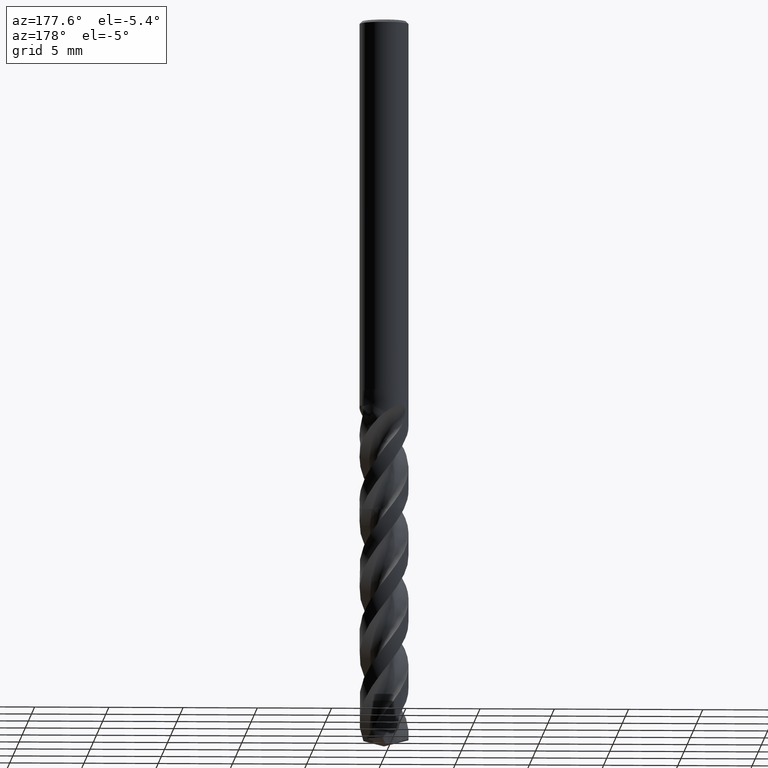
[diagram: clean part render]
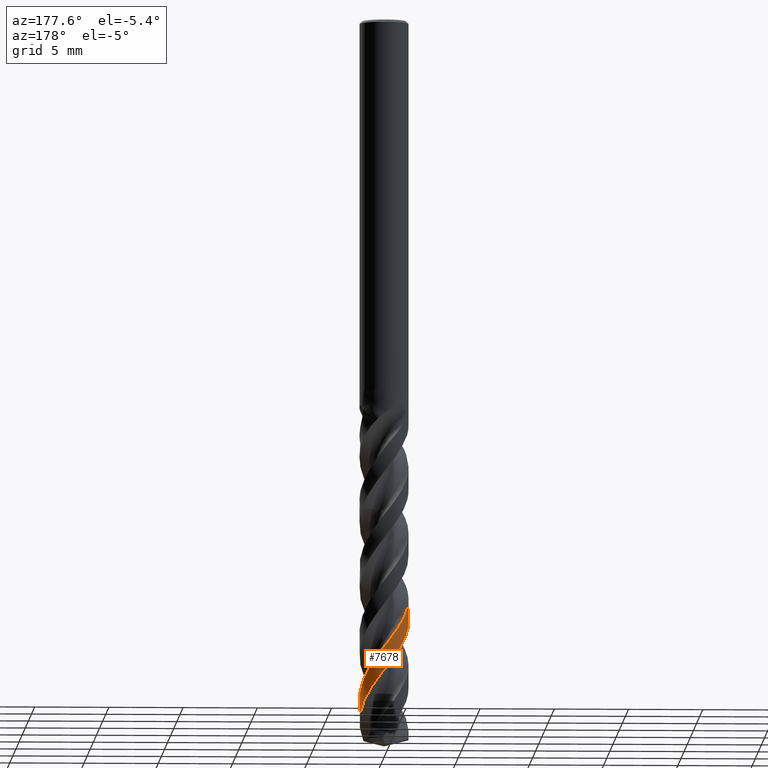
[diagram: same view with one face highlighted and labeled with its STEP entity id]
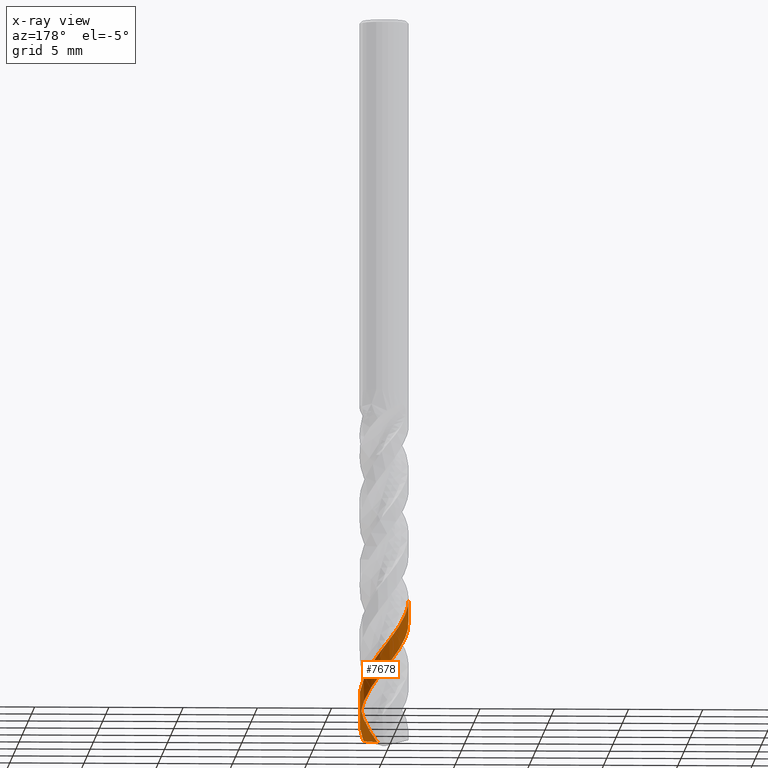
[diagram: x-ray of the same camera — body ghosted, the highlighted face saturated]
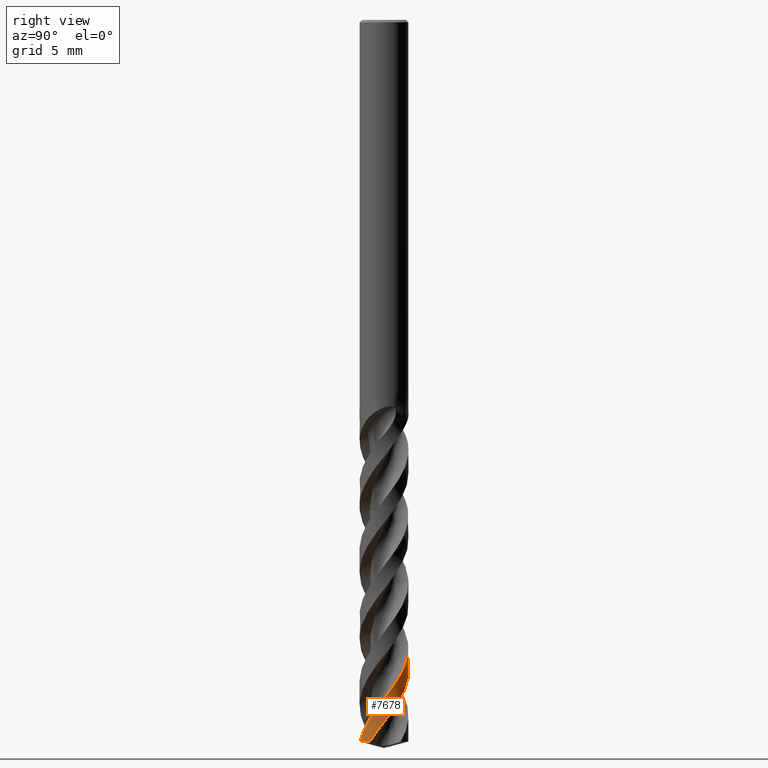
[diagram: same view with one face highlighted and labeled with its STEP entity id]
A machine part, auxiliary view. The second image highlights one B-rep face of the part: STEP entity #7678.
The next image is the same camera in x-ray: the body ghosted, the highlighted face saturated — about 0% of this face is hidden behind the body in this view.
A second angle (right view) of the same face is appended — the face is thin or edge-on in the first view.
In plain terms, the highlighted face is a freeform B-spline surface patch.
Its self-contained STEP definition (entity closure, byte-faithful):
#6183 = VERTEX_POINT('', #6184);
#6184 = CARTESIAN_POINT('', (-1.65, 2.58280122503411E-15, -40.5303450077583));
#6296 = EDGE_CURVE('', #6297, #6183, #6299, .T.);
#6297 = VERTEX_POINT('', #6298);
#6298 = CARTESIAN_POINT('', (1.34862568061958, -0.950635983735822, -48.5578838324886));
#6299 = B_SPLINE_CURVE_WITH_KNOTS('', 3, (#6300, #6301, #6302, #6303, #6304, #6305, #6306, #6307, #6308, #6309, #6310, #6311, #6312, #6313, #6314, #6315, #6316, #6317, #6318, #6319, #6320, #6321, #6322, #6323, #6324, #6325, #6326, #6327, #6328, #6329, #6330, #6331, #6332, #6333, #6334, #6335, #6336, #6337, #6338, #6339, #6340, #6341, #6342, #6343, #6344, #6345, #6346, #6347, #6348, #6349, #6350, #6351, #6352, #6353, #6354, #6355, #6356, #6357, #6358, #6359, #6360, #6361, #6362, #6363, #6364, #6365, #6366, #6367, #6368, #6369, #6370, #6371, #6372, #6373, #6374, #6375, #6376, #6377, #6378, #6379, #6380, #6381, #6382, #6383, #6384, #6385, #6386, #6387, #6388, #6389, #6390, #6391, #6392, #6393, #6394, #6395, #6396, #6397, #6398, #6399, #6400, #6401, #6402, #6403, #6404, #6405, #6406, #6407, #6408, #6409, #6410, #6411, #6412, #6413, #6414, #6415, #6416, #6417), .UNSPECIFIED., .F., .U., (4, 3, 3, 3, 3, 3, 3, 3, 3, 3, 3, 3, 3, 3, 3, 3, 3, 3, 3, 3, 3, 3, 3, 3, 3, 3, 3, 3, 3, 3, 3, 3, 3, 3, 3, 3, 3, 3, 3, 4), (0., 0.295215323512065, 0.590267191524816, 0.885154074333521, 1.17987339500172, 1.47442152550049, 1.60555957725615, 1.64446225696007, 1.67040547160134, 1.96713615445279, 2.26367093303592, 2.56001849573546, 2.85618589632899, 3.15217876144081, 3.44800144757261, 3.74365715798371, 4.03914802618398, 4.33447517079069, 4.62963872476412, 4.92463784063503, 5.21947067207623, 5.51413433094937, 5.80862481766302, 5.89609690350332, 5.92204892259701, 6.21877609185516, 6.51530692672874, 6.81165010283511, 7.10781265948946, 7.40380020637369, 7.69961708018568, 7.99526646101659, 8.29075045531656, 8.58607015014183, 8.88122564167438, 9.17621603958967, 9.47103944758098, 9.76569291911461, 10.0601723861781, 10.1392247962237), .UNSPECIFIED.);
#6300 = CARTESIAN_POINT('', (1.34862568061967, -0.950635983735691, -48.5578838324886));
#6301 = CARTESIAN_POINT('', (1.38323093573415, -0.901543022254905, -48.4799356272496));
#6302 = CARTESIAN_POINT('', (1.4151712479508, -0.850528336268616, -48.4019457760776));
#6303 = CARTESIAN_POINT('', (1.4442203606076, -0.797952097563793, -48.3240005810622));
#6304 = CARTESIAN_POINT('', (1.47325338928489, -0.74540496939174, -48.2460985429217));
#6305 = CARTESIAN_POINT('', (1.49943068297083, -0.691239622981491, -48.1681549680898));
#6306 = CARTESIAN_POINT('', (1.52256680817692, -0.635838277109796, -48.0902559593297));
#6307 = CARTESIAN_POINT('', (1.54568999627347, -0.580467910206019, -48.0124005096358));
#6308 = CARTESIAN_POINT('', (1.56580109377006, -0.523801456636061, -47.9345035514802));
#6309 = CARTESIAN_POINT('', (1.5827576451519, -0.466238390432725, -47.8566511322477));
#6310 = CARTESIAN_POINT('', (1.59970456139494, -0.408708033010788, -47.7788429507171));
#6311 = CARTESIAN_POINT('', (1.61351929088076, -0.35021837316994, -47.7009932764136));
#6312 = CARTESIAN_POINT('', (1.62410389326625, -0.291181290397692, -47.6231881213245));
#6313 = CARTESIAN_POINT('', (1.63468234749737, -0.23217849980615, -47.5454281600071));
#6314 = CARTESIAN_POINT('', (1.64204611804423, -0.172563754501407, -47.4676267255908));
#6315 = CARTESIAN_POINT('', (1.64614276298954, -0.112756391649466, -47.3898697874793));
#6316 = CARTESIAN_POINT('', (1.64796666197662, -0.0861290929741477, -47.3552510195477));
#6317 = CARTESIAN_POINT('', (1.6491445014551, -0.0594541511598686, -47.3206288037916));
#6318 = CARTESIAN_POINT('', (1.64967457341325, -0.032768915664194, -47.2860106587572));
#6319 = CARTESIAN_POINT('', (1.64983182159051, -0.0248526232119758, -47.2757410338071));
#6320 = CARTESIAN_POINT('', (1.64993208827079, -0.0169350929290247, -47.2654713323888));
#6321 = CARTESIAN_POINT('', (1.64997535989363, -0.00901730247358379, -47.2552017495509));
#6322 = CARTESIAN_POINT('', (1.65000421664611, -0.00373712797574668, -47.2483532241057));
#6323 = CARTESIAN_POINT('', (1.65000772720092, 0.00154321960835683, -47.2415046784071));
#6324 = CARTESIAN_POINT('', (1.64998589099385, 0.00682345375996945, -47.2346561729718));
#6325 = CARTESIAN_POINT('', (1.64973613502784, 0.0672171831835612, -47.1563250284918));
#6326 = CARTESIAN_POINT('', (1.64616454707845, 0.127633169067936, -47.0779515816048));
#6327 = CARTESIAN_POINT('', (1.63929600786448, 0.187639544339158, -46.9996234817737));
#6328 = CARTESIAN_POINT('', (1.63243200332193, 0.247606302861184, -46.9213470948593));
#6329 = CARTESIAN_POINT('', (1.62226767967251, 0.307231475131805, -46.8430284885813));
#6330 = CARTESIAN_POINT('', (1.60887496488652, 0.366089261467036, -46.7647551494884));
#6331 = CARTESIAN_POINT('', (1.59549070553008, 0.424909888206592, -46.6865312279121));
#6332 = CARTESIAN_POINT('', (1.57886709303959, 0.48303021031955, -46.6082651451682));
#6333 = CARTESIAN_POINT('', (1.55912204434958, 0.540035601440515, -46.5300442728213));
#6334 = CARTESIAN_POINT('', (1.53938899950235, 0.597006336594602, -46.4518709542217));
#6335 = CARTESIAN_POINT('', (1.5165161817393, 0.652927411690184, -46.3736555139075));
#6336 = CARTESIAN_POINT('', (1.4906658909475, 0.707400312104621, -46.2954852443018));
#6337 = CARTESIAN_POINT('', (1.46483083408403, 0.761841110897152, -46.2173610415003));
#6338 = CARTESIAN_POINT('', (1.43599290266641, 0.814896380138622, -46.1391947432749));
#6339 = CARTESIAN_POINT('', (1.40435665081843, 0.866188430598134, -46.0610735878281));
#6340 = CARTESIAN_POINT('', (1.37273858800709, 0.91745099106022, -45.9829973475806));
#6341 = CARTESIAN_POINT('', (1.33829012948576, 0.967009594946417, -45.9048790298028));
#6342 = CARTESIAN_POINT('', (1.30125546251497, 1.01451181426091, -45.8268058340516));
#6343 = CARTESIAN_POINT('', (1.26424169958737, 1.06198722117164, -45.7487767063477));
#6344 = CARTESIAN_POINT('', (1.22460344210318, 1.10746142912363, -45.6707055147521));
#6345 = CARTESIAN_POINT('', (1.18262143231866, 1.15061138001524, -45.5926794276393));
#6346 = CARTESIAN_POINT('', (1.14066282951416, 1.19373727274375, -45.5146968438049));
#6347 = CARTESIAN_POINT('', (1.09631650316913, 1.23458939138521, -45.436672209025));
#6348 = CARTESIAN_POINT('', (1.04989625518833, 1.27287778413386, -45.3586926609849));
#6349 = CARTESIAN_POINT('', (1.00350172742643, 1.31114496230729, -45.2807563193285));
#6350 = CARTESIAN_POINT('', (0.954984201265916, 1.34689363974574, -45.2027779420304));
#6351 = CARTESIAN_POINT('', (0.904686669602289, 1.37987029457262, -45.1248446306201));
#6352 = CARTESIAN_POINT('', (0.854416999261967, 1.41282868263349, -45.046954488827));
#6353 = CARTESIAN_POINT('', (0.802313766092152, 1.44305453359212, -44.9690223316436));
#6354 = CARTESIAN_POINT('', (0.748744959485499, 1.4703336307264, -44.8911352139249));
#6355 = CARTESIAN_POINT('', (0.695205996512297, 1.49759753044585, -44.8132914877756));
#6356 = CARTESIAN_POINT('', (0.640144084244638, 1.52194801552226, -44.7354057736119));
#6357 = CARTESIAN_POINT('', (0.583947738819532, 1.54321257068739, -44.6575650648571));
#6358 = CARTESIAN_POINT('', (0.527783070022416, 1.56446513949651, -44.5797682331757));
#6359 = CARTESIAN_POINT('', (0.470423464774244, 1.58265864097984, -44.501929449787));
#6360 = CARTESIAN_POINT('', (0.412273274132113, 1.59766415351804, -44.4241356284161));
#6361 = CARTESIAN_POINT('', (0.354156449574197, 1.61266105602092, -44.3463864444775));
#6362 = CARTESIAN_POINT('', (0.295186121254824, 1.62449010250595, -44.2685953555473));
#6363 = CARTESIAN_POINT('', (0.235777616556393, 1.63306733343464, -44.1908491745247));
#6364 = CARTESIAN_POINT('', (0.176404025898907, 1.64163952357341, -44.1131486844914));
#6365 = CARTESIAN_POINT('', (0.116527651394694, 1.64697312596027, -44.0354063477764));
#6366 = CARTESIAN_POINT('', (0.0565698282940053, 1.64902997381117, -43.9577088530375));
#6367 = CARTESIAN_POINT('', (0.038760642307769, 1.64964091637092, -43.9346304778913));
#6368 = CARTESIAN_POINT('', (0.0209405198223135, 1.64996334675913, -43.9115510994048));
#6369 = CARTESIAN_POINT('', (0.0031205904409683, 1.64999704906261, -43.8884729552703));
#6370 = CARTESIAN_POINT('', (-0.00216638932075027, 1.65000704817049, -43.881625920225));
#6371 = CARTESIAN_POINT('', (-0.00745345321827499, 1.64999163591465, -43.8747788658822));
#6372 = CARTESIAN_POINT('', (-0.0127403130272574, 1.64995081272866, -43.8679318526121));
#6373 = CARTESIAN_POINT('', (-0.0731885941309502, 1.64948405334573, -43.7896452708177));
#6374 = CARTESIAN_POINT('', (-0.133647300524621, 1.645689244062, -43.7113162283699));
#6375 = CARTESIAN_POINT('', (-0.193683382176557, 1.638592916947, -43.6330326893394));
#6376 = CARTESIAN_POINT('', (-0.253679739973166, 1.6315012852329, -43.5548009478929));
#6377 = CARTESIAN_POINT('', (-0.313321725294733, 1.62110450831393, -43.4765268098586));
#6378 = CARTESIAN_POINT('', (-0.372182602171612, 1.6074763172877, -43.3982981121728));
#6379 = CARTESIAN_POINT('', (-0.431006229095729, 1.5938567508267, -43.3201189213147));
#6380 = CARTESIAN_POINT('', (-0.489115986485443, 1.57699452734379, -43.2418973798748));
#6381 = CARTESIAN_POINT('', (-0.546096559770692, 1.55700948854098, -43.1637212322948));
#6382 = CARTESIAN_POINT('', (-0.603042403726055, 1.53703663050374, -43.0855927326246));
#6383 = CARTESIAN_POINT('', (-0.6589244359169, 1.51392232535339, -43.0074219156128));
#6384 = CARTESIAN_POINT('', (-0.713343702222703, 1.48783089176802, -42.9292964574646));
#6385 = CARTESIAN_POINT('', (-0.767730810839855, 1.46175487625523, -42.8512171655793));
#6386 = CARTESIAN_POINT('', (-0.820717855625883, 1.43267602483312, -42.773095581376));
#6387 = CARTESIAN_POINT('', (-0.871926957275129, 1.40080097843232, -42.6950193281662));
#6388 = CARTESIAN_POINT('', (-0.923106530605374, 1.3689443118997, -42.6169880954788));
#6389 = CARTESIAN_POINT('', (-0.972567444275789, 1.33425905876215, -42.5389145911786));
#6390 = CARTESIAN_POINT('', (-1.01995733030816, 1.29699153595953, -42.4608863933938));
#6391 = CARTESIAN_POINT('', (-1.06732038395202, 1.25974511421315, -42.3829023755617));
#6392 = CARTESIAN_POINT('', (-1.11266758704697, 1.21987780869525, -42.3048761058278));
#6393 = CARTESIAN_POINT('', (-1.15567619210651, 1.1776725092309, -42.2268951183463));
#6394 = CARTESIAN_POINT('', (-1.19866073811349, 1.13549081944923, -42.1489577534997));
#6395 = CARTESIAN_POINT('', (-1.23935713371342, 1.09092682284267, -42.0709781582844));
#6396 = CARTESIAN_POINT('', (-1.27747598830924, 1.04429646140038, -41.9930438185903));
#6397 = CARTESIAN_POINT('', (-1.31557364748362, 0.997692028076145, -41.9151528131252));
#6398 = CARTESIAN_POINT('', (-1.35113892903331, 0.948971796026702, -41.8372196030106));
#6399 = CARTESIAN_POINT('', (-1.38391912190893, 0.898480864579106, -41.759331616973));
#6400 = CARTESIAN_POINT('', (-1.41668108838212, 0.848018007036981, -41.6814869381173));
#6401 = CARTESIAN_POINT('', (-1.44669736173244, 0.795730519159579, -41.6036000864796));
#6402 = CARTESIAN_POINT('', (-1.4737547831813, 0.741988435927566, -41.5257584209073));
#6403 = CARTESIAN_POINT('', (-1.50079707020879, 0.688276413037218, -41.4479602956469));
#6404 = CARTESIAN_POINT('', (-1.524913723069, 0.63305202924157, -41.3701200372243));
#6405 = CARTESIAN_POINT('', (-1.54593352691967, 0.57670575716369, -41.2923249187805));
#6406 = CARTESIAN_POINT('', (-1.5669414317544, 0.520391381919595, -41.2145738390613));
#6407 = CARTESIAN_POINT('', (-1.58487919300339, 0.462894211483336, -41.1367806748401));
#6408 = CARTESIAN_POINT('', (-1.59961942457939, 0.404620435109787, -41.0590325952341));
#6409 = CARTESIAN_POINT('', (-1.61435115987363, 0.34638024778943, -40.9813293296858));
#6410 = CARTESIAN_POINT('', (-1.6259053010846, 0.287300122712647, -40.9035840383449));
#6411 = CARTESIAN_POINT('', (-1.63419964861685, 0.227797077375743, -40.8258837660455));
#6412 = CARTESIAN_POINT('', (-1.64248909801048, 0.168329170928678, -40.7482293788145));
#6413 = CARTESIAN_POINT('', (-1.64753173999295, 0.108373319471106, -40.6705330353173));
#6414 = CARTESIAN_POINT('', (-1.64929137761684, 0.0483523703621811, -40.5928816343759));
#6415 = CARTESIAN_POINT('', (-1.64976374873447, 0.0322398694547204, -40.5720362747688));
#6416 = CARTESIAN_POINT('', (-1.65, 0.0161196683379471, -40.5511901781771));
#6417 = CARTESIAN_POINT('', (-1.65, 2.64748870769945E-15, -40.5303450077583));
#6599 = VERTEX_POINT('', #6600);
#6600 = CARTESIAN_POINT('', (-1.65, 2.4874326338311E-15, -38.9728577180448));
#6691 = EDGE_CURVE('', #6599, #6183, #6692, .T.);
#6692 = LINE('', #6693, #6694);
#6693 = CARTESIAN_POINT('', (-1.65, 2.4874326338311E-15, -38.9728577180448));
#6694 = VECTOR('', #6695, 1.55748728971347);
#6695 = DIRECTION('', (0., 9.53685912030141E-17, -1.55748728971347));
#6718 = VERTEX_POINT('', #6719);
#6719 = CARTESIAN_POINT('', (0.838178071042521, -1.42125209629518, -47.9134276784569));
#6792 = EDGE_CURVE('', #6718, #6599, #6793, .T.);
#6793 = B_SPLINE_CURVE_WITH_KNOTS('', 3, (#6794, #6795, #6796, #6797, #6798, #6799, #6800, #6801, #6802, #6803, #6804, #6805, #6806, #6807, #6808, #6809, #6810, #6811, #6812, #6813, #6814, #6815, #6816, #6817, #6818, #6819, #6820, #6821, #6822, #6823, #6824, #6825, #6826, #6827, #6828, #6829, #6830, #6831, #6832, #6833, #6834, #6835, #6836, #6837, #6838, #6839, #6840, #6841, #6842, #6843, #6844, #6845, #6846, #6847, #6848, #6849, #6850, #6851, #6852, #6853, #6854, #6855, #6856, #6857, #6858, #6859, #6860, #6861, #6862, #6863, #6864, #6865, #6866, #6867, #6868, #6869, #6870, #6871, #6872, #6873, #6874, #6875, #6876, #6877, #6878, #6879, #6880, #6881, #6882, #6883, #6884, #6885, #6886, #6887, #6888, #6889, #6890, #6891, #6892, #6893, #6894, #6895, #6896, #6897, #6898, #6899, #6900, #6901, #6902, #6903, #6904, #6905, #6906, #6907, #6908, #6909, #6910, #6911, #6912, #6913, #6914, #6915, #6916, #6917), .UNSPECIFIED., .F., .U., (4, 3, 3, 3, 3, 3, 3, 3, 3, 3, 3, 3, 3, 3, 3, 3, 3, 3, 3, 3, 3, 3, 3, 3, 3, 3, 3, 3, 3, 3, 3, 3, 3, 3, 3, 3, 3, 3, 3, 3, 3, 4), (0., 0.295852010004674, 0.59153808599436, 0.88706044690494, 1.18242031239958, 1.47761792520636, 1.77265256264097, 2.06752252101915, 2.36222507723736, 2.65675642426546, 2.78789096213215, 2.82680304344088, 3.12352607780027, 3.42005423194634, 3.71639604686181, 4.01255844758308, 4.30854694647595, 4.60436579728548, 4.90001810952122, 5.19550592990723, 5.49083029549806, 5.78599126138929, 6.08098790455805, 6.37581830412042, 6.67047949707571, 6.96496740731165, 7.05243923489707, 7.34918005974824, 7.64572411579383, 7.94208012724141, 8.23825517114505, 8.53425488656127, 8.83008363311184, 9.12574460886271, 9.4212399344961, 9.71657070855522, 10.0117370368194, 10.3067380374392, 10.6015718221868, 10.8962354529408, 11.1907248712124, 11.289199204332), .UNSPECIFIED.);
#6794 = CARTESIAN_POINT('', (0.838178071042521, -1.42125209629518, -47.9134276784569));
#6795 = CARTESIAN_POINT('', (0.889944011151767, -1.39072332807765, -47.8352377759933));
#6796 = CARTESIAN_POINT('', (0.940071037135031, -1.3573426288674, -47.7570075154485));
#6797 = CARTESIAN_POINT('', (0.988203748762046, -1.32134528073953, -47.6788230407062));
#6798 = CARTESIAN_POINT('', (1.03630946427674, -1.28536812238324, -47.6006824171577));
#6799 = CARTESIAN_POINT('', (1.08247672556913, -1.24673714275768, -47.522501534705));
#6800 = CARTESIAN_POINT('', (1.12637824840055, -1.20572469557943, -47.4443663422072));
#6801 = CARTESIAN_POINT('', (1.17025546389433, -1.16473495611919, -47.3662744115004));
#6802 = CARTESIAN_POINT('', (1.21191837512531, -1.12132068072608, -47.2881422829152));
#6803 = CARTESIAN_POINT('', (1.25107169911961, -1.07578789901261, -47.2100557832392));
#6804 = CARTESIAN_POINT('', (1.29020349433468, -1.030280153876, -47.1320122200713));
#6805 = CARTESIAN_POINT('', (1.32687205860231, -0.982605536196763, -47.0539284917882));
#6806 = CARTESIAN_POINT('', (1.36081757072834, -0.93309996206034, -46.9758903578277));
#6807 = CARTESIAN_POINT('', (1.39474443526129, -0.883621583265621, -46.8978950932563));
#6808 = CARTESIAN_POINT('', (1.42598896988879, -0.832259242129773, -46.819859674037));
#6809 = CARTESIAN_POINT('', (1.45432981885017, -0.779374606978721, -46.7418698346613));
#6810 = CARTESIAN_POINT('', (1.48265502113892, -0.726519168856109, -46.6639230526226));
#6811 = CARTESIAN_POINT('', (1.50811116704303, -0.67208449400619, -46.5859361110259));
#6812 = CARTESIAN_POINT('', (1.53051788033911, -0.616453581352496, -46.5079947483832));
#6813 = CARTESIAN_POINT('', (1.55291208691247, -0.560853720124776, -46.430096890158));
#6814 = CARTESIAN_POINT('', (1.57228503555402, -0.503997475349901, -46.3521588577111));
#6815 = CARTESIAN_POINT('', (1.58849933084874, -0.446284523474936, -46.2742664114366));
#6816 = CARTESIAN_POINT('', (1.60470442104143, -0.388604336120493, -46.1964181858884));
#6817 = CARTESIAN_POINT('', (1.61777231161739, -0.330004845315015, -46.1185297669051));
#6818 = CARTESIAN_POINT('', (1.62761005821099, -0.270897579189703, -46.0406869444001));
#6819 = CARTESIAN_POINT('', (1.63744208950762, -0.211824651779645, -45.9628893451425));
#6820 = CARTESIAN_POINT('', (1.64405853582907, -0.152179661683835, -45.8850515332716));
#6821 = CARTESIAN_POINT('', (1.64741183125988, -0.0923810490633867, -45.8072593268439));
#6822 = CARTESIAN_POINT('', (1.64890482292643, -0.0657568424715372, -45.7726238113293));
#6823 = CARTESIAN_POINT('', (1.64975237842199, -0.0390927289321137, -45.737985118826));
#6824 = CARTESIAN_POINT('', (1.64995320934643, -0.0124260600119691, -45.7033506739573));
#6825 = CARTESIAN_POINT('', (1.65001280271816, -0.00451315158880222, -45.6930734551807));
#6826 = CARTESIAN_POINT('', (1.65001547179787, 0.0034003092650473, -45.6827961740098));
#6827 = CARTESIAN_POINT('', (1.64996121407239, 0.0113133574484536, -45.6725190332883));
#6828 = CARTESIAN_POINT('', (1.6495474732392, 0.0716540945420011, -45.594150971831));
#6829 = CARTESIAN_POINT('', (1.64581757480899, 0.132009608055933, -45.5157420010068));
#6830 = CARTESIAN_POINT('', (1.63879698549316, 0.191949056623891, -45.4373793656372));
#6831 = CARTESIAN_POINT('', (1.63178100712352, 0.251849138472145, -45.3590681968722));
#6832 = CARTESIAN_POINT('', (1.62147076128229, 0.311401130885794, -45.2807162175592));
#6833 = CARTESIAN_POINT('', (1.60793863116071, 0.370180170215975, -45.2024104776607));
#6834 = CARTESIAN_POINT('', (1.59441500467254, 0.428922272611801, -45.124153945337));
#6835 = CARTESIAN_POINT('', (1.57765832702987, 0.486958495069738, -45.0458566625116));
#6836 = CARTESIAN_POINT('', (1.55778685910775, 0.543875079031271, -44.9676055593157));
#6837 = CARTESIAN_POINT('', (1.53792742196638, 0.600757203991293, -44.8894018316771));
#6838 = CARTESIAN_POINT('', (1.51493465494709, 0.656584962852225, -44.8111573836224));
#6839 = CARTESIAN_POINT('', (1.48897110241223, 0.710960657266859, -44.7329590831498));
#6840 = CARTESIAN_POINT('', (1.46302279526047, 0.765304423142771, -44.6548066994694));
#6841 = CARTESIAN_POINT('', (1.43407810586428, 0.818258757034558, -44.5766136032581));
#6842 = CARTESIAN_POINT('', (1.40234173981136, 0.869446746375449, -44.4984666428212));
#6843 = CARTESIAN_POINT('', (1.3706235637006, 0.920605396926778, -44.4203644729153));
#6844 = CARTESIAN_POINT('', (1.33608145863387, 0.970056922216114, -44.3422215829967));
#6845 = CARTESIAN_POINT('', (1.29895967366097, 1.01744963816525, -44.2641248306864));
#6846 = CARTESIAN_POINT('', (1.26185878731948, 1.06481567320713, -44.1860720448836));
#6847 = CARTESIAN_POINT('', (1.22213978894487, 1.11017800279523, -44.1079785222303));
#6848 = CARTESIAN_POINT('', (1.18008339506146, 1.15321428221308, -44.029931146862));
#6849 = CARTESIAN_POINT('', (1.1380504000616, 1.19622661756922, -43.951927194652));
#6850 = CARTESIAN_POINT('', (1.09363593620875, 1.23696326356619, -43.8738824846717));
#6851 = CARTESIAN_POINT('', (1.04715369476661, 1.27513494953932, -43.7958839344139));
#6852 = CARTESIAN_POINT('', (1.00069716587413, 1.31328552010706, -43.7179285305608));
#6853 = CARTESIAN_POINT('', (0.952123735599883, 1.34891619751231, -43.6399323485482));
#6854 = CARTESIAN_POINT('', (0.901776205632616, 1.38177410417002, -43.561982337018));
#6855 = CARTESIAN_POINT('', (0.851456532395882, 1.414613830912, -43.4840754543655));
#6856 = CARTESIAN_POINT('', (0.799309218134252, 1.44472008689831, -43.4061277777091));
#6857 = CARTESIAN_POINT('', (0.74570198742707, 1.47187925657893, -43.3282262767613));
#6858 = CARTESIAN_POINT('', (0.692124601066237, 1.49902330614131, -43.2503681453243));
#6859 = CARTESIAN_POINT('', (0.637030005143608, 1.52325340784376, -43.1724692120552));
#6860 = CARTESIAN_POINT('', (0.580806387430139, 1.54439759787446, -43.0946164508587));
#6861 = CARTESIAN_POINT('', (0.524614454202542, 1.56552987222244, -43.0168075631235));
#6862 = CARTESIAN_POINT('', (0.46723314430214, 1.58360289499148, -42.9389578767241));
#6863 = CARTESIAN_POINT('', (0.409066430094103, 1.59848824073568, -42.8611543470491));
#6864 = CARTESIAN_POINT('', (0.350933098442176, 1.61336504360624, -42.7833954697278));
#6865 = CARTESIAN_POINT('', (0.291951652188452, 1.62507411140385, -42.7055958104399));
#6866 = CARTESIAN_POINT('', (0.232537005794447, 1.63353192222763, -42.6278422783991));
#6867 = CARTESIAN_POINT('', (0.173157299636012, 1.64198475922895, -42.550134471224));
#6868 = CARTESIAN_POINT('', (0.113280042948897, 1.64719939912448, -42.4723859144377));
#6869 = CARTESIAN_POINT('', (0.0533261421508942, 1.64913805442862, -42.3946834392679));
#6870 = CARTESIAN_POINT('', (0.035518017975358, 1.64971389376401, -42.3716034510078));
#6871 = CARTESIAN_POINT('', (0.0176993867403177, 1.65000127640106, -42.3485225686202));
#6872 = CARTESIAN_POINT('', (-0.00011859334938618, 1.64999999573807, -42.3254430036424));
#6873 = CARTESIAN_POINT('', (-0.0605645935639985, 1.64999565119647, -42.2471475188244));
#6874 = CARTESIAN_POINT('', (-0.121048017723858, 1.6466638815768, -42.1688107707256));
#6875 = CARTESIAN_POINT('', (-0.181135609374542, 1.64002740556883, -42.0905206665009));
#6876 = CARTESIAN_POINT('', (-0.241183356950364, 1.6333953302073, -42.0122824764349));
#6877 = CARTESIAN_POINT('', (-0.300903686052249, 1.62345542927489, -41.9340031522139));
#6878 = CARTESIAN_POINT('', (-0.35986898856099, 1.61027771240622, -41.85577034787));
#6879 = CARTESIAN_POINT('', (-0.418796899975962, 1.59710835179499, -41.7775871525334));
#6880 = CARTESIAN_POINT('', (-0.47703740700134, 1.58069038260835, -41.6993629113478));
#6881 = CARTESIAN_POINT('', (-0.534173734487902, 1.56114010306036, -41.6211851044802));
#6882 = CARTESIAN_POINT('', (-0.591275172110735, 1.54160176174184, -41.5430550362957));
#6883 = CARTESIAN_POINT('', (-0.647338343284852, 1.51891284554034, -41.4648839781747));
#6884 = CARTESIAN_POINT('', (-0.701962322981946, 1.49323437447502, -41.3867592991008));
#6885 = CARTESIAN_POINT('', (-0.756553966599634, 1.46757110444567, -41.308680867954));
#6886 = CARTESIAN_POINT('', (-0.809769761967154, 1.43889284691824, -41.2305614778107));
#6887 = CARTESIAN_POINT('', (-0.861229424934404, 1.40740323917034, -41.1524884345563));
#6888 = CARTESIAN_POINT('', (-0.912659364899417, 1.37593181975924, -41.0744604861412));
#6889 = CARTESIAN_POINT('', (-0.962393149333607, 1.34161684374395, -40.9963915912377));
#6890 = CARTESIAN_POINT('', (-1.01007564432925, 1.30470195551814, -40.9183690278559));
#6891 = CARTESIAN_POINT('', (-1.05773109756371, 1.26780800251377, -40.8403907127359));
#6892 = CARTESIAN_POINT('', (-1.10339114572432, 1.22827563057317, -40.7623714509648));
#6893 = CARTESIAN_POINT('', (-1.14672998242867, 1.18638541267125, -40.6843985165744));
#6894 = CARTESIAN_POINT('', (-1.19004453766208, 1.14451866462192, -40.6064692681175));
#6895 = CARTESIAN_POINT('', (-1.2310890220892, 1.10024980468708, -40.528499065245));
#6896 = CARTESIAN_POINT('', (-1.26957075602385, 1.05389282920468, -40.4505751919464));
#6897 = CARTESIAN_POINT('', (-1.30803106075353, 1.00756166838882, -40.3726947118757));
#6898 = CARTESIAN_POINT('', (-1.34397443890459, 0.959092964860118, -40.2947732664721));
#6899 = CARTESIAN_POINT('', (-1.37714471746836, 0.908830252109269, -40.2168981548804));
#6900 = CARTESIAN_POINT('', (-1.41029652618982, 0.858595526593343, -40.1390664056328));
#6901 = CARTESIAN_POINT('', (-1.44071524975793, 0.806512847784722, -40.0611936808734));
#6902 = CARTESIAN_POINT('', (-1.46818414675662, 0.752951068272397, -39.9833672924614));
#6903 = CARTESIAN_POINT('', (-1.49563765796229, 0.699419289617176, -39.9055844959237));
#6904 = CARTESIAN_POINT('', (-1.52017513619347, 0.64435063010504, -39.8277607178236));
#6905 = CARTESIAN_POINT('', (-1.54162171100439, 0.588134763604355, -39.7499832736435));
#6906 = CARTESIAN_POINT('', (-1.56305612922023, 0.531950762029981, -39.672249916172));
#6907 = CARTESIAN_POINT('', (-1.58142688709635, 0.474558645207572, -39.5944755781533));
#6908 = CARTESIAN_POINT('', (-1.59660291409366, 0.416364185188668, -39.5167475638428));
#6909 = CARTESIAN_POINT('', (-1.61177018272698, 0.35820331026176, -39.4390644077974));
#6910 = CARTESIAN_POINT('', (-1.62376316470547, 0.299176782104918, -39.3613402818149));
#6911 = CARTESIAN_POINT('', (-1.63249598867744, 0.239701578953057, -39.2836624591192));
#6912 = CARTESIAN_POINT('', (-1.64122364958623, 0.180261539023569, -39.2060305614881));
#6913 = CARTESIAN_POINT('', (-1.64670462998291, 0.120307848658812, -39.1283577162878));
#6914 = CARTESIAN_POINT('', (-1.64889911388642, 0.0602636891157598, -39.0507311416711));
#6915 = CARTESIAN_POINT('', (-1.6496329274822, 0.0401855192330163, -39.0247735870241));
#6916 = CARTESIAN_POINT('', (-1.65, 0.0200922882486097, -38.9988147206533));
#6917 = CARTESIAN_POINT('', (-1.65, 2.66241640584404E-15, -38.9728577180448));
#7067 = VERTEX_POINT('', #7068);
#7068 = CARTESIAN_POINT('', (0.380480779873371, -1.60553242762236, -48.5578838324886));
#7162 = EDGE_CURVE('', #6718, #7067, #7163, .T.);
#7163 = B_SPLINE_CURVE_WITH_KNOTS('', 3, (#7164, #7165, #7166, #7167, #7168, #7169, #7170, #7171, #7172, #7173), .UNSPECIFIED., .F., .U., (4, 3, 3, 4), (0., 0.295096782672107, 0.590030502246844, 0.812644942985463), .UNSPECIFIED.);
#7164 = CARTESIAN_POINT('', (0.83817807104254, -1.42125209629516, -47.9134276784569));
#7165 = CARTESIAN_POINT('', (0.786544274882108, -1.45170293311656, -47.9914179839954));
#7166 = CARTESIAN_POINT('', (0.733221599090869, -1.4793508275405, -48.0694528021432));
#7167 = CARTESIAN_POINT('', (0.678585457757363, -1.50400192038446, -48.1474464288625));
#7168 = CARTESIAN_POINT('', (0.623979506988299, -1.52863939165141, -48.2253969582555));
#7169 = CARTESIAN_POINT('', (0.568001392100819, -1.55031052929922, -48.3033919299307));
#7170 = CARTESIAN_POINT('', (0.511044432521499, -1.56886378885757, -48.3813456418225));
#7171 = CARTESIAN_POINT('', (0.468053615055104, -1.5828676928751, -48.4401846989547));
#7172 = CARTESIAN_POINT('', (0.424474160722834, -1.59510682950494, -48.4990429988465));
#7173 = CARTESIAN_POINT('', (0.38048077987337, -1.60553242762236, -48.5578838324887));
#7588 = EDGE_CURVE('', #6297, #7067, #7589, .T.);
#7589 = CIRCLE('', #7590, 1.64999999999999);
#7590 = AXIS2_PLACEMENT_3D('', #7591, #7592, #7593);
#7591 = CARTESIAN_POINT('', (1.82062903257832E-31, 2.97331285044131E-15, -48.5578838324886));
#7592 = DIRECTION('', (3.74939945665464E-33, 6.12323399573677E-17, -1.));
#7593 = DIRECTION('', (-1., 6.12323399573677E-17, 0.));
#7678 = ADVANCED_FACE('', (#7679), #7686, .T.);
#7679 = FACE_OUTER_BOUND('', #7680, .T.);
#7680 = EDGE_LOOP('', (#7681, #7682, #7683, #7684, #7685));
#7681 = ORIENTED_EDGE('', *, *, #7162, .T.);
#7682 = ORIENTED_EDGE('', *, *, #7588, .F.);
#7683 = ORIENTED_EDGE('', *, *, #6296, .T.);
#7684 = ORIENTED_EDGE('', *, *, #6691, .F.);
#7685 = ORIENTED_EDGE('', *, *, #6792, .F.);
#7686 = (
   BOUNDED_SURFACE ()
   B_SPLINE_SURFACE (2, 1, ((#7687, #7688), (#7689, #7690), (#7691, #7692), (#7693, #7694), (#7695, #7696), (#7697, #7698), (#7699, #7700)), .UNSPECIFIED., .F., .F., .U.)
   B_SPLINE_SURFACE_WITH_KNOTS ((3, 2, 2, 3), (2, 2), (0., 2.59181393921158, 5.18362787842316, 7.36684181497184), (0.593128729957267, 1.), .UNSPECIFIED.)
   GEOMETRIC_REPRESENTATION_ITEM ()
   RATIONAL_B_SPLINE_SURFACE (((1., 1.), (0.707106781186548, 0.707106781186548), (1., 1.), (0.707106781186548, 0.707106781186548), (1., 1.), (0.753281457607775, 0.753281457607775), (0.922209541701041, 0.922209541701041)))
   REPRESENTATION_ITEM ('')
   SURFACE ()
);
#7687 = CARTESIAN_POINT('', (-1.65, 2.4874326338311E-15, -38.9728577180448));
#7688 = CARTESIAN_POINT('', (-1.65, 3.07434621137097E-15, -48.5578838324886));
#7689 = CARTESIAN_POINT('', (-1.65, 1.65, -38.9728577180448));
#7690 = CARTESIAN_POINT('', (-1.65, 1.65, -48.5578838324886));
#7691 = CARTESIAN_POINT('', (1.4791141972894E-31, 1.65, -38.9728577180448));
#7692 = CARTESIAN_POINT('', (1.72563323017096E-31, 1.65, -48.5578838324886));
#7693 = CARTESIAN_POINT('', (1.65, 1.65, -38.9728577180448));
#7694 = CARTESIAN_POINT('', (1.65, 1.65, -48.5578838324886));
#7695 = CARTESIAN_POINT('', (1.65, 2.4874326338311E-15, -38.9728577180448));
#7696 = CARTESIAN_POINT('', (1.65, 3.07434621137097E-15, -48.5578838324886));
#7697 = CARTESIAN_POINT('', (1.65, -1.30468041452828, -38.9728577180448));
#7698 = CARTESIAN_POINT('', (1.65, -1.30468041452828, -48.5578838324886));
#7699 = CARTESIAN_POINT('', (0.38048077987337, -1.60553242762236, -38.9728577180448));
#7700 = CARTESIAN_POINT('', (0.38048077987337, -1.60553242762236, -48.5578838324887));